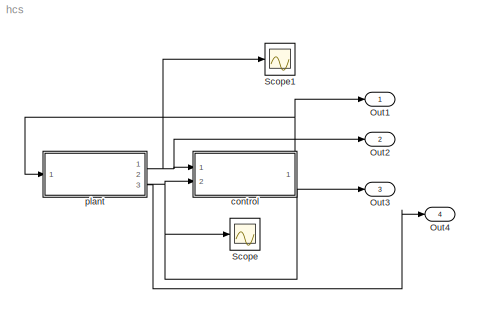
MODEL hcs
KIND model
BLOCK [Outport] Out1
  IconDisplay = Port number
  SID = 57
BLOCK [Outport] Out2
  IconDisplay = Port number
  Port = 2
  SID = 60
BLOCK [Outport] Out3
  IconDisplay = Port number
  Port = 3
  SID = 61
BLOCK [Outport] Out4
  IconDisplay = Port number
  Port = 4
  SID = 62
BLOCK [Scope] Scope
  DataFormat = StructureWithTime
  Floating = off
  NumInputPorts = 1
  Ports = [1]
  SID = 45
  SampleTime = 0
  ShowLegends = off
  YMax = -1.9998
  YMin = -2
  ZoomMode = yonly
BLOCK [Scope] Scope1
  DataFormat = StructureWithTime
  Floating = off
  NumInputPorts = 1
  Ports = [1]
  SID = 58
  SampleTime = 0
  SaveName = ScopeData2
  ShowLegends = off
  TimeRange = 100
  YMax = -1.9998
  YMin = -2
  ZoomMode = yonly
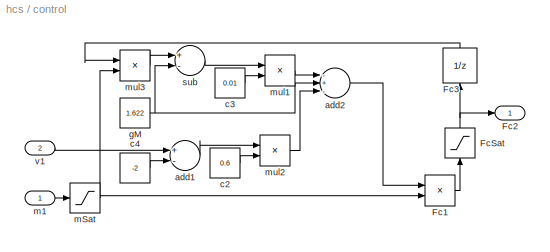
BLOCK [SubSystem] control
  Ports = [2, 1]
  RequestExecContextInheritance = off
  SID = 24
BLOCK [Product] control/Fc1
  InputSameDT = off
  Inputs = **
  OutDataTypeStr = Inherit: Inherit via internal rule
  Ports = [2, 1]
  RndMeth = Floor
  SID = 43
  SampleTime = 0.128
  SaturateOnIntegerOverflow = off
BLOCK [Outport] control/Fc2
  IconDisplay = Port number
  SID = 40
BLOCK [UnitDelay] control/Fc3
  InitialCondition = 2027.5
  InputProcessing = Elements as channels (sample based)
  SID = 44
  SampleTime = -1
BLOCK [Saturate] control/FcSat
  InputPortMap = u0
  LowerLimit = 1500
  Ports = [1, 1]
  SID = 54
  SampleTime = 0.128
  UpperLimit = 5000
BLOCK [Sum] control/add1
  InputSameDT = off
  Inputs = +-
  OutDataTypeStr = Inherit: Inherit via internal rule
  Ports = [2, 1]
  SID = 28
  SampleTime = 0.128
  SaturateOnIntegerOverflow = off
BLOCK [Sum] control/add2
  InputSameDT = off
  Inputs = -+-
  OutDataTypeStr = Inherit: Inherit via internal rule
  Ports = [3, 1]
  SID = 29
  SampleTime = 0.128
  SaturateOnIntegerOverflow = off
BLOCK [Constant] control/c2
  SID = 30
  Value = 0.6
BLOCK [Constant] control/c3
  SID = 31
  Value = 0.01
BLOCK [Constant] control/c4
  SID = 32
  Value = -2
BLOCK [Constant] control/gM
  SID = 35
  Value = 1.622
BLOCK [Inport] control/m1
  IconDisplay = Port number
  SID = 27
BLOCK [Saturate] control/mSat
  InputPortMap = u0
  LowerLimit = 1100
  Ports = [1, 1]
  SID = 52
  SampleTime = 0.128
  UpperLimit = 3000
BLOCK [Product] control/mul1
  InputSameDT = off
  Inputs = **
  OutDataTypeStr = Inherit: Inherit via internal rule
  Ports = [2, 1]
  RndMeth = Floor
  SID = 37
  SampleTime = 0.128
  SaturateOnIntegerOverflow = off
BLOCK [Product] control/mul2
  InputSameDT = off
  Inputs = **
  OutDataTypeStr = Inherit: Inherit via internal rule
  Ports = [2, 1]
  RndMeth = Floor
  SID = 38
  SampleTime = 0.128
  SaturateOnIntegerOverflow = off
BLOCK [Product] control/mul3
  InputSameDT = off
  Inputs = */
  OutDataTypeStr = Inherit: Inherit via internal rule
  Ports = [2, 1]
  RndMeth = Floor
  SID = 41
  SampleTime = 0.128
  SaturateOnIntegerOverflow = off
BLOCK [Sum] control/sub
  InputSameDT = off
  Inputs = +-
  OutDataTypeStr = Inherit: Inherit via internal rule
  Ports = [2, 1]
  SID = 39
  SampleTime = 0.128
  SaturateOnIntegerOverflow = off
BLOCK [Inport] control/v1
  IconDisplay = Port number
  Port = 2
  SID = 26
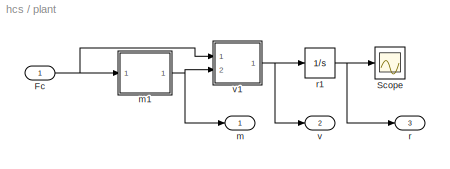
BLOCK [SubSystem] plant
  Ports = [1, 3]
  RequestExecContextInheritance = off
  SID = 1
BLOCK [Inport] plant/Fc
  IconDisplay = Port number
  SID = 2
BLOCK [Scope] plant/Scope
  DataFormat = StructureWithTime
  Floating = off
  NumInputPorts = 1
  Ports = [1]
  SID = 51
  SampleTime = 0
  SaveName = ScopeData1
  ShowLegends = off
  TimeRange = 14
  YMax = 6.22
  YMin = 5.85
  ZoomMode = xonly
BLOCK [Outport] plant/m
  IconDisplay = Port number
  SID = 3
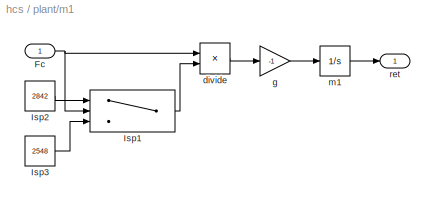
BLOCK [SubSystem] plant/m1
  Ports = [1, 1]
  RequestExecContextInheritance = off
  SID = 16
BLOCK [Inport] plant/m1/Fc
  IconDisplay = Port number
  SID = 17
BLOCK [Switch] plant/m1/Isp1
  Criteria = u2 > Threshold
  InputSameDT = off
  SID = 49
  SampleTime = 0.001
  SaturateOnIntegerOverflow = off
  Threshold = 3000
BLOCK [Constant] plant/m1/Isp2
  SID = 21
  Value = 2842
BLOCK [Constant] plant/m1/Isp3
  SID = 48
  Value = 2548
BLOCK [Product] plant/m1/divide
  InputSameDT = off
  Inputs = */
  OutDataTypeStr = Inherit: Inherit via internal rule
  Ports = [2, 1]
  RndMeth = Floor
  SID = 19
  SampleTime = 0.001
  SaturateOnIntegerOverflow = off
BLOCK [Gain] plant/m1/g
  Gain = -1
  OutDataTypeStr = Inherit: Inherit via internal rule
  ParamDataTypeStr = Inherit: Inherit via internal rule
  SID = 20
  SampleTime = 0.001
  SaturateOnIntegerOverflow = off
BLOCK [Integrator] plant/m1/m1
  InitialCondition = 1250
  Ports = [1, 1]
  SID = 8
BLOCK [Outport] plant/m1/ret
  IconDisplay = Port number
  SID = 18
BLOCK [Outport] plant/r
  IconDisplay = Port number
  Port = 3
  SID = 63
BLOCK [Integrator] plant/r1
  InitialCondition = 30
  Ports = [1, 1]
  SID = 46
BLOCK [Outport] plant/v
  IconDisplay = Port number
  Port = 2
  SID = 22
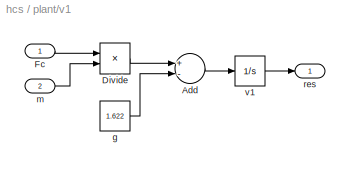
BLOCK [SubSystem] plant/v1
  Ports = [2, 1]
  RequestExecContextInheritance = off
  SID = 12
BLOCK [Sum] plant/v1/Add
  InputSameDT = off
  Inputs = +-
  OutDataTypeStr = Inherit: Inherit via internal rule
  Ports = [2, 1]
  SID = 10
  SampleTime = 0.001
  SaturateOnIntegerOverflow = off
BLOCK [Product] plant/v1/Divide
  InputSameDT = off
  Inputs = */
  OutDataTypeStr = Inherit: Inherit via internal rule
  Ports = [2, 1]
  RndMeth = Floor
  SID = 9
  SampleTime = 0.001
  SaturateOnIntegerOverflow = off
BLOCK [Inport] plant/v1/Fc
  IconDisplay = Port number
  SID = 13
BLOCK [Constant] plant/v1/g
  SID = 11
  Value = 1.622
BLOCK [Inport] plant/v1/m
  IconDisplay = Port number
  Port = 2
  SID = 15
BLOCK [Outport] plant/v1/res
  IconDisplay = Port number
  SID = 14
BLOCK [Integrator] plant/v1/v1
  InitialCondition = -2
  Ports = [1, 1]
  SID = 7
LINE control/Fc1:1 -> control/FcSat:1
LINE control/Fc3:1 -> control/mul3:1
NET control/FcSat:1 -> control/Fc2:1, control/Fc3:1
LINE control/add1:1 -> control/mul2:1
LINE control/add2:1 -> control/Fc1:1
LINE control/c2:1 -> control/mul2:2
LINE control/c3:1 -> control/mul1:2
LINE control/c4:1 -> control/add1:2
NET control/gM:1 -> control/add2:2, control/sub:2
LINE control/m1:1 -> control/mSat:1
NET control/mSat:1 -> control/Fc1:2, control/mul3:2
LINE control/mul1:1 -> control/add2:1
LINE control/mul2:1 -> control/add2:3
LINE control/mul3:1 -> control/sub:1
LINE control/sub:1 -> control/mul1:1
LINE control/v1:1 -> control/add1:1
NET control:1 -> Out1:1, plant:1
NET plant/Fc:1 -> plant/m1:1, plant/v1:1
NET plant/m1/Fc:1 -> plant/m1/Isp1:2, plant/m1/divide:1
LINE plant/m1/Isp1:1 -> plant/m1/divide:2
LINE plant/m1/Isp2:1 -> plant/m1/Isp1:1
LINE plant/m1/Isp3:1 -> plant/m1/Isp1:3
LINE plant/m1/divide:1 -> plant/m1/g:1
LINE plant/m1/g:1 -> plant/m1/m1:1
LINE plant/m1/m1:1 -> plant/m1/ret:1
NET plant/m1:1 -> plant/m:1, plant/v1:2
NET plant/r1:1 -> plant/Scope:1, plant/r:1
LINE plant/v1/Add:1 -> plant/v1/v1:1
LINE plant/v1/Divide:1 -> plant/v1/Add:1
LINE plant/v1/Fc:1 -> plant/v1/Divide:1
LINE plant/v1/g:1 -> plant/v1/Add:2
LINE plant/v1/m:1 -> plant/v1/Divide:2
LINE plant/v1/v1:1 -> plant/v1/res:1
NET plant/v1:1 -> plant/r1:1, plant/v:1
NET plant:1 -> Out2:1, Scope1:1, control:1
NET plant:2 -> Out3:1, Scope:1, control:2
LINE plant:3 -> Out4:1
note: NET lines group one-source signal fan-out (src -> all destinations, sorted); 1:1 wires keep LINE
